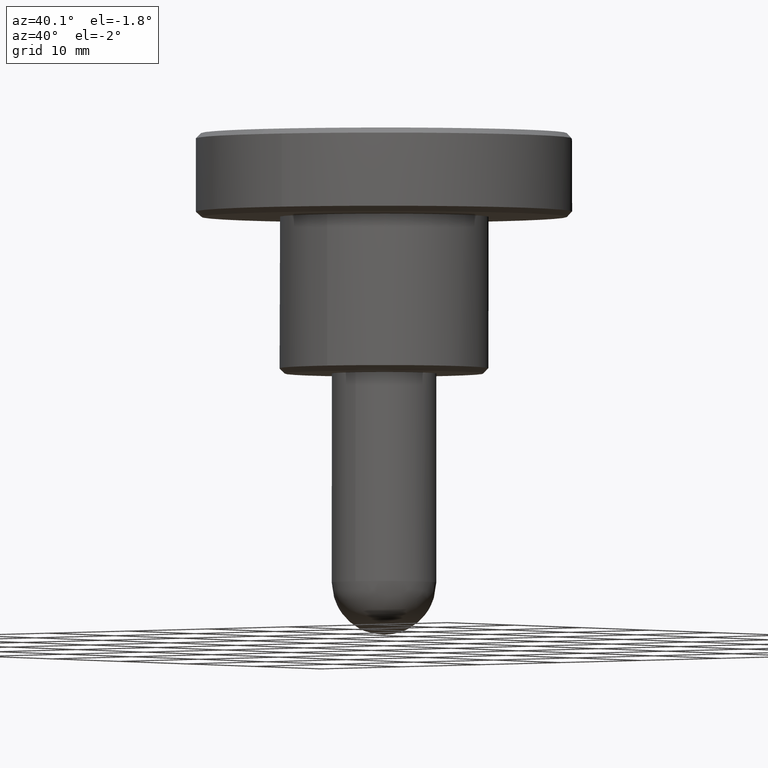
[diagram: clean part render]
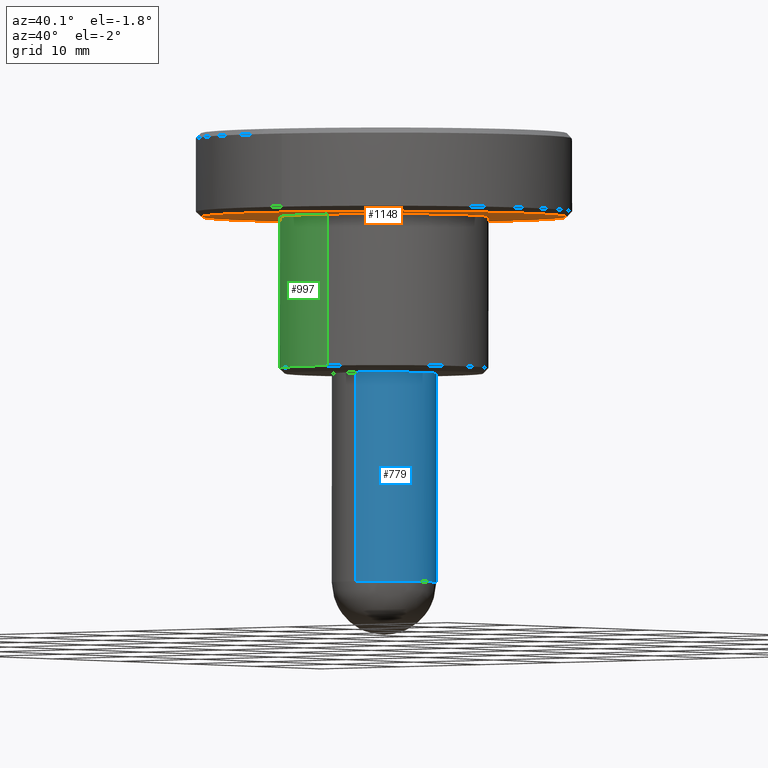
[diagram: same view with three faces highlighted in distinct colors, each labeled with its STEP entity id]
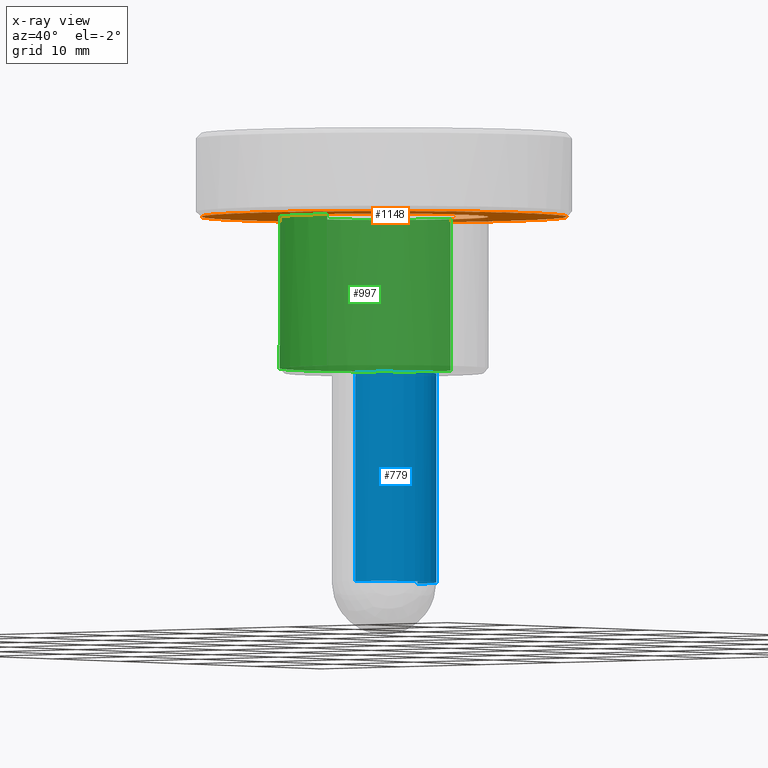
[diagram: x-ray of the same camera — body ghosted, the three highlighted faces saturated]
A machine part, auxiliary view with three faces highlighted in distinct colors.
The next image is the same camera in x-ray (body ghosted, the three faces saturated) — at least one of them is partly hidden behind the body in this view.
Their STEP definitions:

[orange] entity #1148 — the highlighted face is a freeform B-spline surface patch.
#286=CARTESIAN_POINT('',(17.500000000000000,0.0,15.0));
#287=VERTEX_POINT('',#286);
#288=CARTESIAN_POINT('',(14.330156972433670,-10.044730018543410,15.000000000000471));
#289=VERTEX_POINT('',#288);
#290=CARTESIAN_POINT('',(17.500000000000000,0.0,15.0));
#291=CARTESIAN_POINT('',(17.500000000000004,-5.522523042438500,14.999999999999996));
#292=CARTESIAN_POINT('',(14.330156972433665,-10.044730018543413,15.000000000000471));
#300=(BOUNDED_CURVE()B_SPLINE_CURVE(2,(#290,#291,#292),.UNSPECIFIED.,.F.,.U.)B_SPLINE_CURVE_WITH_KNOTS((3,3),(0.0,0.098673726203063),.UNSPECIFIED.)CURVE()GEOMETRIC_REPRESENTATION_ITEM()RATIONAL_B_SPLINE_CURVE((1.0,0.884396538880270,0.860049271925778))REPRESENTATION_ITEM(''));
#301=EDGE_CURVE('',#287,#289,#300,.T.);
#303=CARTESIAN_POINT('',(-17.500000000000000,0.0,15.0));
#304=VERTEX_POINT('',#303);
#305=CARTESIAN_POINT('',(-17.500000000000000,0.0,15.0));
#306=CARTESIAN_POINT('',(-17.499999999999996,17.499999999999996,14.999999999999995));
#307=CARTESIAN_POINT('',(0.0,17.500000000000000,15.0));
#308=CARTESIAN_POINT('',(17.499999999999996,17.499999999999996,14.999999999999995));
#309=CARTESIAN_POINT('',(17.500000000000000,0.0,15.0));
#317=(BOUNDED_CURVE()B_SPLINE_CURVE(2,(#305,#306,#307,#308,#309),.UNSPECIFIED.,.F.,.U.)B_SPLINE_CURVE_WITH_KNOTS((3,2,3),(0.500000000000000,0.750000000000000,1.0),.UNSPECIFIED.)CURVE()GEOMETRIC_REPRESENTATION_ITEM()RATIONAL_B_SPLINE_CURVE((1.0,0.707106781186548,1.0,0.707106781186548,1.0))REPRESENTATION_ITEM(''));
#318=EDGE_CURVE('',#304,#287,#317,.T.);
#320=CARTESIAN_POINT('',(0.152714371268623,-17.499333653628991,15.000000000006411));
#321=VERTEX_POINT('',#320);
#322=CARTESIAN_POINT('',(0.152714371268623,-17.499333653628984,15.000000000006407));
#323=CARTESIAN_POINT('',(0.076358639409304,-17.499999999999996,15.000000000000004));
#324=CARTESIAN_POINT('',(0.0,-17.500000000000000,15.0));
#325=CARTESIAN_POINT('',(-17.499999999999996,-17.499999999999996,14.999999999999995));
#326=CARTESIAN_POINT('',(-17.500000000000000,0.0,15.0));
#334=(BOUNDED_CURVE()B_SPLINE_CURVE(2,(#322,#323,#324,#325,#326),.UNSPECIFIED.,.F.,.U.)B_SPLINE_CURVE_WITH_KNOTS((3,2,3),(0.248460105664066,0.250000000000000,0.500000000000000),.UNSPECIFIED.)CURVE()GEOMETRIC_REPRESENTATION_ITEM()RATIONAL_B_SPLINE_CURVE((0.996414028098215,0.998195901565263,1.0,0.707106781186548,1.0))REPRESENTATION_ITEM(''));
#335=EDGE_CURVE('',#321,#304,#334,.T.);
#430=CARTESIAN_POINT('',(14.330156972433665,-10.044730018543413,15.000000000000471));
#431=CARTESIAN_POINT('',(9.159947341175357,-17.420728722285244,14.999999999999998));
#432=CARTESIAN_POINT('',(0.152714371268623,-17.499333653628991,15.000000000006404));
#440=(BOUNDED_CURVE()B_SPLINE_CURVE(2,(#430,#431,#432),.UNSPECIFIED.,.F.,.U.)B_SPLINE_CURVE_WITH_KNOTS((3,3),(0.098673726203063,0.248460105664066),.UNSPECIFIED.)CURVE()GEOMETRIC_REPRESENTATION_ITEM()RATIONAL_B_SPLINE_CURVE((0.860049271925778,0.823090203821073,0.996414028098215))REPRESENTATION_ITEM(''));
#441=EDGE_CURVE('',#289,#321,#440,.T.);
#891=CARTESIAN_POINT('',(-0.087258228863051,9.999619292825345,15.0));
#892=VERTEX_POINT('',#891);
#898=CARTESIAN_POINT('',(10.0,0.0,15.0));
#899=VERTEX_POINT('',#898);
#900=CARTESIAN_POINT('',(-0.087258228863051,9.999619292825345,14.999999999999998));
#901=CARTESIAN_POINT('',(-0.043629944943184,10.0,14.999999999999998));
#902=CARTESIAN_POINT('',(0.0,10.0,15.0));
#903=CARTESIAN_POINT('',(10.000000000000002,10.000000000000002,14.999999999999995));
#904=CARTESIAN_POINT('',(10.0,0.0,15.0));
#912=(BOUNDED_CURVE()B_SPLINE_CURVE(2,(#900,#901,#902,#903,#904),.UNSPECIFIED.,.F.,.U.)B_SPLINE_CURVE_WITH_KNOTS((3,2,3),(0.248460231191280,0.250000000000000,0.500000000000000),.UNSPECIFIED.)CURVE()GEOMETRIC_REPRESENTATION_ITEM()RATIONAL_B_SPLINE_CURVE((0.996414318603505,0.998196048629542,1.0,0.707106781186548,1.0))REPRESENTATION_ITEM(''));
#913=EDGE_CURVE('',#892,#899,#912,.T.);
#915=CARTESIAN_POINT('',(1.241272842970325,-9.922663036163831,15.0));
#916=VERTEX_POINT('',#915);
#917=CARTESIAN_POINT('',(10.0,0.0,15.0));
#918=CARTESIAN_POINT('',(10.0,-8.826992436511523,14.999999999999996));
#919=CARTESIAN_POINT('',(1.241272842970325,-9.922663036163831,15.0));
#927=(BOUNDED_CURVE()B_SPLINE_CURVE(2,(#917,#918,#919),.UNSPECIFIED.,.F.,.U.)B_SPLINE_CURVE_WITH_KNOTS((3,3),(0.500000000000000,0.728526193023929),.UNSPECIFIED.)CURVE()GEOMETRIC_REPRESENTATION_ITEM()RATIONAL_B_SPLINE_CURVE((1.0,0.732264910968149,0.954005667019270))REPRESENTATION_ITEM(''));
#928=EDGE_CURVE('',#899,#916,#927,.T.);
#963=CARTESIAN_POINT('',(-10.0,0.0,15.0));
#964=VERTEX_POINT('',#963);
#965=CARTESIAN_POINT('',(1.241272842970325,-9.922663036163831,15.0));
#966=CARTESIAN_POINT('',(0.623045644408739,-9.999999999999998,14.999999999999998));
#967=CARTESIAN_POINT('',(0.0,-10.0,15.0));
#968=CARTESIAN_POINT('',(-10.000000000000002,-10.000000000000002,14.999999999999995));
#969=CARTESIAN_POINT('',(-10.0,0.0,15.0));
#977=(BOUNDED_CURVE()B_SPLINE_CURVE(2,(#965,#966,#967,#968,#969),.UNSPECIFIED.,.F.,.U.)B_SPLINE_CURVE_WITH_KNOTS((3,2,3),(0.728526193023929,0.750000000000000,1.0),.UNSPECIFIED.)CURVE()GEOMETRIC_REPRESENTATION_ITEM()RATIONAL_B_SPLINE_CURVE((0.954005667019270,0.974841870218399,1.0,0.707106781186548,1.0))REPRESENTATION_ITEM(''));
#978=EDGE_CURVE('',#916,#964,#977,.T.);
#980=CARTESIAN_POINT('',(-10.0,0.0,15.0));
#981=CARTESIAN_POINT('',(-9.999999999999998,9.913119170693559,14.999999999999996));
#982=CARTESIAN_POINT('',(-0.087258228863051,9.999619292825345,14.999999999999998));
#990=(BOUNDED_CURVE()B_SPLINE_CURVE(2,(#980,#981,#982),.UNSPECIFIED.,.F.,.U.)B_SPLINE_CURVE_WITH_KNOTS((3,3),(0.0,0.248460231191280),.UNSPECIFIED.)CURVE()GEOMETRIC_REPRESENTATION_ITEM()RATIONAL_B_SPLINE_CURVE((1.0,0.708910732557006,0.996414318603505))REPRESENTATION_ITEM(''));
#991=EDGE_CURVE('',#964,#892,#990,.T.);
#1131=CARTESIAN_POINT('',(-19.248249932163208,-19.247551095767321,15.0));
#1132=CARTESIAN_POINT('',(19.248250870936360,-19.247551095767321,15.0));
#1133=CARTESIAN_POINT('',(-19.248249932163208,19.248217624707522,15.0));
#1134=CARTESIAN_POINT('',(19.248250870936360,19.248217624707522,15.0));
#1135=B_SPLINE_SURFACE_WITH_KNOTS('',1,1,((#1131,#1133),(#1132,#1134)),.UNSPECIFIED.,.F.,.F.,.U.,(2,2),(2,2),(0.0,38.496500803099579),(0.0,38.495768720474842),.UNSPECIFIED.);
#1136=ORIENTED_EDGE('',*,*,#301,.T.);
#1137=ORIENTED_EDGE('',*,*,#441,.T.);
#1138=ORIENTED_EDGE('',*,*,#335,.T.);
#1139=ORIENTED_EDGE('',*,*,#318,.T.);
#1140=EDGE_LOOP('',(#1136,#1137,#1138,#1139));
#1141=FACE_OUTER_BOUND('',#1140,.T.);
#1142=ORIENTED_EDGE('',*,*,#991,.F.);
#1143=ORIENTED_EDGE('',*,*,#978,.F.);
#1144=ORIENTED_EDGE('',*,*,#928,.F.);
#1145=ORIENTED_EDGE('',*,*,#913,.F.);
#1146=EDGE_LOOP('',(#1142,#1143,#1144,#1145));
#1147=FACE_BOUND('',#1146,.T.);
#1148=ADVANCED_FACE('',(#1141,#1147),#1135,.F.);

[blue] entity #779 — the highlighted face is a freeform B-spline surface patch.
#677=CARTESIAN_POINT('',(0.550585073724925,-4.970094623911720,-20.500000000000000));
#678=CARTESIAN_POINT('',(0.585526285719118,-4.965723636796916,-20.500000000000007));
#679=CARTESIAN_POINT('',(5.038664152512223,-4.408656290666105,-20.500000000000004));
#680=CARTESIAN_POINT('',(4.999809615320855,0.043632677491869,-20.500000000000000));
#681=CARTESIAN_POINT('',(4.956176937828985,5.043442292812725,-20.500000000000007));
#682=CARTESIAN_POINT('',(-0.077477366968815,4.999514257190369,-20.500000000000004));
#683=CARTESIAN_POINT('',(-0.111132793367470,4.999220550733747,-20.500000000000007));
#684=CARTESIAN_POINT('',(0.550585073724925,-4.970094623911720,0.512500000000003));
#685=CARTESIAN_POINT('',(0.585526285719118,-4.965723636796916,0.512500000000003));
#686=CARTESIAN_POINT('',(5.038664152512223,-4.408656290666105,0.512500000000003));
#687=CARTESIAN_POINT('',(4.999809615320855,0.043632677491869,0.512500000000003));
#688=CARTESIAN_POINT('',(4.956176937828985,5.043442292812725,0.512500000000003));
#689=CARTESIAN_POINT('',(-0.077477366968815,4.999514257190369,0.512500000000003));
#690=CARTESIAN_POINT('',(-0.111132793367470,4.999220550733747,0.512500000000003));
#698=(BOUNDED_SURFACE()B_SPLINE_SURFACE(2,1,((#677,#684),(#678,#685),(#679,#686),(#680,#687),(#681,#688),(#682,#689),(#683,#690)),.UNSPECIFIED.,.F.,.F.,.U.)B_SPLINE_SURFACE_WITH_KNOTS((3,1,2,1,3),(2,2),(0.0,0.079538800556767,7.701068348221712,15.985339595683611,16.064868646661449),(0.0,21.012500000000010),.UNSPECIFIED.)GEOMETRIC_REPRESENTATION_ITEM()RATIONAL_B_SPLINE_SURFACE(((0.961610481910915,0.961610481910915),(0.959248300050787,0.959248300050787),(0.730538238691624,0.730538238691624),(1.0,1.0),(0.707106781186548,0.707106781186548),(1.002811776562388,1.002811776562388),(1.005623553124776,1.005623553124776)))REPRESENTATION_ITEM('')SURFACE());
#699=CARTESIAN_POINT('',(0.620639601353718,-4.961331120297387,-20.0));
#700=VERTEX_POINT('',#699);
#701=CARTESIAN_POINT('',(5.0,0.0,-20.0));
#702=VERTEX_POINT('',#701);
#703=CARTESIAN_POINT('',(0.620639601353718,-4.961331120297387,-20.000000000000007));
#704=CARTESIAN_POINT('',(5.000000000000001,-4.413493734179329,-20.000000000000004));
#705=CARTESIAN_POINT('',(5.0,0.0,-20.0));
#713=(BOUNDED_CURVE()B_SPLINE_CURVE(2,(#703,#704,#705),.UNSPECIFIED.,.F.,.U.)B_SPLINE_CURVE_WITH_KNOTS((3,3),(0.771473901162097,1.0),.UNSPECIFIED.)CURVE()GEOMETRIC_REPRESENTATION_ITEM()RATIONAL_B_SPLINE_CURVE((0.954005484240476,0.732265021313941,1.0))REPRESENTATION_ITEM(''));
#714=EDGE_CURVE('',#700,#702,#713,.T.);
#715=ORIENTED_EDGE('',*,*,#714,.T.);
#716=CARTESIAN_POINT('',(-0.043632677518870,4.999809615320620,-20.0));
#717=VERTEX_POINT('',#716);
#718=CARTESIAN_POINT('',(5.0,0.0,-20.0));
#719=CARTESIAN_POINT('',(5.000000000000001,5.000000000000001,-19.999999999999996));
#720=CARTESIAN_POINT('',(0.0,5.0,-20.0));
#721=CARTESIAN_POINT('',(-0.021816754130510,5.000000000000001,-19.999999999999996));
#722=CARTESIAN_POINT('',(-0.043632677518870,4.999809615320620,-20.000000000000004));
#730=(BOUNDED_CURVE()B_SPLINE_CURVE(2,(#718,#719,#720,#721,#722),.UNSPECIFIED.,.F.,.U.)B_SPLINE_CURVE_WITH_KNOTS((3,2,3),(0.0,0.250000000000000,0.251539894336890),.UNSPECIFIED.)CURVE()GEOMETRIC_REPRESENTATION_ITEM()RATIONAL_B_SPLINE_CURVE((1.0,0.707106781186548,1.0,0.998195901564143,0.996414028096003))REPRESENTATION_ITEM(''));
#731=EDGE_CURVE('',#702,#717,#730,.T.);
#732=ORIENTED_EDGE('',*,*,#731,.T.);
#733=CARTESIAN_POINT('',(-0.043632677514503,4.999809615320658,-5.551115E-017));
#734=VERTEX_POINT('',#733);
#735=CARTESIAN_POINT('',(-0.043632677518870,4.999809615320620,-20.0));
#736=CARTESIAN_POINT('',(-0.043632677514503,4.999809615320658,-5.551115E-017));
#737=QUASI_UNIFORM_CURVE('',1,(#735,#736),.UNSPECIFIED.,.F.,.U.);
#738=EDGE_CURVE('',#717,#734,#737,.T.);
#739=ORIENTED_EDGE('',*,*,#738,.T.);
#740=CARTESIAN_POINT('',(5.0,0.0,0.0));
#741=VERTEX_POINT('',#740);
#742=CARTESIAN_POINT('',(-0.043632677514503,4.999809615320658,-5.551115E-017));
#743=CARTESIAN_POINT('',(-0.021816754126143,5.000000000000001,0.0));
#744=CARTESIAN_POINT('',(0.0,5.0,0.0));
#745=CARTESIAN_POINT('',(5.000000000000001,5.000000000000001,0.0));
#746=CARTESIAN_POINT('',(5.0,0.0,0.0));
#754=(BOUNDED_CURVE()B_SPLINE_CURVE(2,(#742,#743,#744,#745,#746),.UNSPECIFIED.,.F.,.U.)B_SPLINE_CURVE_WITH_KNOTS((3,2,3),(0.248460105663418,0.250000000000000,0.500000000000000),.UNSPECIFIED.)CURVE()GEOMETRIC_REPRESENTATION_ITEM()RATIONAL_B_SPLINE_CURVE((0.996414028096715,0.998195901564504,1.0,0.707106781186548,1.0))REPRESENTATION_ITEM(''));
#755=EDGE_CURVE('',#734,#741,#754,.T.);
#756=ORIENTED_EDGE('',*,*,#755,.T.);
#757=CARTESIAN_POINT('',(0.620631380892056,-4.961332148624638,1.102233E-015));
#758=VERTEX_POINT('',#757);
#759=CARTESIAN_POINT('',(5.0,0.0,0.0));
#760=CARTESIAN_POINT('',(5.0,-4.413500737210683,0.0));
#761=CARTESIAN_POINT('',(0.620631380892056,-4.961332148624638,1.102233E-015));
#769=(BOUNDED_CURVE()B_SPLINE_CURVE(2,(#759,#760,#761),.UNSPECIFIED.,.F.,.U.)B_SPLINE_CURVE_WITH_KNOTS((3,3),(0.500000000000000,0.728526364364156),.UNSPECIFIED.)CURVE()GEOMETRIC_REPRESENTATION_ITEM()RATIONAL_B_SPLINE_CURVE((1.0,0.732264710230585,0.954005999525077))REPRESENTATION_ITEM(''));
#770=EDGE_CURVE('',#741,#758,#769,.T.);
#771=ORIENTED_EDGE('',*,*,#770,.T.);
#772=CARTESIAN_POINT('',(0.620639601353718,-4.961331120297387,-20.0));
#773=CARTESIAN_POINT('',(0.620631380892056,-4.961332148624638,1.102233E-015));
#774=QUASI_UNIFORM_CURVE('',1,(#772,#773),.UNSPECIFIED.,.F.,.U.);
#775=EDGE_CURVE('',#700,#758,#774,.T.);
#776=ORIENTED_EDGE('',*,*,#775,.F.);
#777=EDGE_LOOP('',(#715,#732,#739,#756,#771,#776));
#778=FACE_OUTER_BOUND('',#777,.T.);
#779=ADVANCED_FACE('',(#778),#698,.T.);

[green] entity #997 — the highlighted face is a freeform B-spline surface patch.
#498=CARTESIAN_POINT('',(-4.042154319914989,-9.146638095718963,0.500000000003185));
#499=VERTEX_POINT('',#498);
#500=CARTESIAN_POINT('',(1.241265789382446,-9.922663918520220,0.499999999999937));
#501=VERTEX_POINT('',#500);
#502=CARTESIAN_POINT('',(-4.042154319914989,-9.146638095718963,0.500000000003185));
#503=CARTESIAN_POINT('',(-2.111156172558719,-10.0,0.499999999999945));
#504=CARTESIAN_POINT('',(0.0,-10.0,0.499999999999945));
#505=CARTESIAN_POINT('',(0.623042076330564,-10.000000000000002,0.499999999999945));
#506=CARTESIAN_POINT('',(1.241265789382446,-9.922663918520220,0.499999999999937));
#514=(BOUNDED_CURVE()B_SPLINE_CURVE(2,(#502,#503,#504,#505,#506),.UNSPECIFIED.,.F.,.U.)B_SPLINE_CURVE_WITH_KNOTS((3,2,3),(0.181361578458741,0.250000000000000,0.271473687093023),.UNSPECIFIED.)CURVE()GEOMETRIC_REPRESENTATION_ITEM()RATIONAL_B_SPLINE_CURVE((0.883326595750625,0.919585087122024,1.0,0.974842010670127,0.954005899666328))REPRESENTATION_ITEM(''));
#515=EDGE_CURVE('',#499,#501,#514,.T.);
#558=CARTESIAN_POINT('',(-0.087262114269280,9.999619258919854,0.499999999998912));
#559=VERTEX_POINT('',#558);
#616=CARTESIAN_POINT('',(-10.0,0.0,0.499999999999945));
#617=VERTEX_POINT('',#616);
#618=CARTESIAN_POINT('',(-10.0,0.0,0.499999999999945));
#619=CARTESIAN_POINT('',(-10.0,-6.513700025861865,0.499999999999945));
#620=CARTESIAN_POINT('',(-4.042154319914989,-9.146638095718963,0.500000000003185));
#628=(BOUNDED_CURVE()B_SPLINE_CURVE(2,(#618,#619,#620),.UNSPECIFIED.,.F.,.U.)B_SPLINE_CURVE_WITH_KNOTS((3,3),(0.0,0.181361578458741),.UNSPECIFIED.)CURVE()GEOMETRIC_REPRESENTATION_ITEM()RATIONAL_B_SPLINE_CURVE((1.0,0.787521694064524,0.883326595750625))REPRESENTATION_ITEM(''));
#629=EDGE_CURVE('',#617,#499,#628,.T.);
#631=CARTESIAN_POINT('',(-0.087262114269280,9.999619258919854,0.499999999998912));
#632=CARTESIAN_POINT('',(-10.0,9.913115318751508,0.499999999999945));
#633=CARTESIAN_POINT('',(-10.0,0.0,0.499999999999945));
#641=(BOUNDED_CURVE()B_SPLINE_CURVE(2,(#631,#632,#633),.UNSPECIFIED.,.F.,.U.)B_SPLINE_CURVE_WITH_KNOTS((3,3),(0.751539837249965,1.0),.UNSPECIFIED.)CURVE()GEOMETRIC_REPRESENTATION_ITEM()RATIONAL_B_SPLINE_CURVE((0.996414160211171,0.708910812740912,1.0))REPRESENTATION_ITEM(''));
#642=EDGE_CURVE('',#559,#617,#641,.T.);
#891=CARTESIAN_POINT('',(-0.087258228863051,9.999619292825345,15.0));
#892=VERTEX_POINT('',#891);
#893=CARTESIAN_POINT('',(-0.087262114269280,9.999619258919854,0.499999999998912));
#894=CARTESIAN_POINT('',(-0.087258228863051,9.999619292825345,15.0));
#895=QUASI_UNIFORM_CURVE('',1,(#893,#894),.UNSPECIFIED.,.F.,.U.);
#896=EDGE_CURVE('',#559,#892,#895,.T.);
#915=CARTESIAN_POINT('',(1.241272842970325,-9.922663036163831,15.0));
#916=VERTEX_POINT('',#915);
#930=CARTESIAN_POINT('',(1.241265789382446,-9.922663918520220,0.499999999999937));
#931=CARTESIAN_POINT('',(1.241272842970325,-9.922663036163831,15.0));
#932=QUASI_UNIFORM_CURVE('',1,(#930,#931),.UNSPECIFIED.,.F.,.U.);
#933=EDGE_CURVE('',#501,#916,#932,.T.);
#938=CARTESIAN_POINT('',(-0.087265354983739,9.999619230641709,0.137499999999943));
#939=CARTESIAN_POINT('',(-10.086884585625448,9.912353875657971,0.137499999999943));
#940=CARTESIAN_POINT('',(-9.999619230641709,-0.087265354983739,0.137499999999943));
#941=CARTESIAN_POINT('',(-9.912353875657971,-10.086884585625448,0.137499999999943));
#942=CARTESIAN_POINT('',(0.087265354983739,-9.999619230641709,0.137499999999943));
#943=CARTESIAN_POINT('',(0.666501589581736,-9.994564312602755,0.137499999999943));
#944=CARTESIAN_POINT('',(1.241280020798293,-9.922662138255385,0.137499999999943));
#945=CARTESIAN_POINT('',(-0.087265354983739,9.999619230641709,15.371562500000000));
#946=CARTESIAN_POINT('',(-10.086884585625448,9.912353875657971,15.371562500000001));
#947=CARTESIAN_POINT('',(-9.999619230641709,-0.087265354983739,15.371562500000000));
#948=CARTESIAN_POINT('',(-9.912353875657971,-10.086884585625448,15.371562500000001));
#949=CARTESIAN_POINT('',(0.087265354983739,-9.999619230641709,15.371562500000000));
#950=CARTESIAN_POINT('',(0.666501589581736,-9.994564312602755,15.371562500000001));
#951=CARTESIAN_POINT('',(1.241280020798293,-9.922662138255385,15.371562500000005));
#959=(BOUNDED_SURFACE()B_SPLINE_SURFACE(2,1,((#938,#945),(#939,#946),(#940,#947),(#941,#948),(#942,#949),(#943,#950),(#944,#951)),.UNSPECIFIED.,.F.,.F.,.U.)B_SPLINE_SURFACE_WITH_KNOTS((3,2,2,3),(2,2),(0.0,16.568542494923800,33.137084989847587,34.462568389441500),(0.0,15.234062500000061),.UNSPECIFIED.)GEOMETRIC_REPRESENTATION_ITEM()RATIONAL_B_SPLINE_SURFACE(((1.0,1.0),(0.707106781186548,0.707106781186548),(1.0,1.0),(0.707106781186548,0.707106781186548),(1.0,1.0),(0.976568542494924,0.976568542494924),(0.956886118190660,0.956886118190660)))REPRESENTATION_ITEM('')SURFACE());
#960=ORIENTED_EDGE('',*,*,#629,.T.);
#961=ORIENTED_EDGE('',*,*,#515,.T.);
#962=ORIENTED_EDGE('',*,*,#933,.T.);
#963=CARTESIAN_POINT('',(-10.0,0.0,15.0));
#964=VERTEX_POINT('',#963);
#965=CARTESIAN_POINT('',(1.241272842970325,-9.922663036163831,15.0));
#966=CARTESIAN_POINT('',(0.623045644408739,-9.999999999999998,14.999999999999998));
#967=CARTESIAN_POINT('',(0.0,-10.0,15.0));
#968=CARTESIAN_POINT('',(-10.000000000000002,-10.000000000000002,14.999999999999995));
#969=CARTESIAN_POINT('',(-10.0,0.0,15.0));
#977=(BOUNDED_CURVE()B_SPLINE_CURVE(2,(#965,#966,#967,#968,#969),.UNSPECIFIED.,.F.,.U.)B_SPLINE_CURVE_WITH_KNOTS((3,2,3),(0.728526193023929,0.750000000000000,1.0),.UNSPECIFIED.)CURVE()GEOMETRIC_REPRESENTATION_ITEM()RATIONAL_B_SPLINE_CURVE((0.954005667019270,0.974841870218399,1.0,0.707106781186548,1.0))REPRESENTATION_ITEM(''));
#978=EDGE_CURVE('',#916,#964,#977,.T.);
#979=ORIENTED_EDGE('',*,*,#978,.T.);
#980=CARTESIAN_POINT('',(-10.0,0.0,15.0));
#981=CARTESIAN_POINT('',(-9.999999999999998,9.913119170693559,14.999999999999996));
#982=CARTESIAN_POINT('',(-0.087258228863051,9.999619292825345,14.999999999999998));
#990=(BOUNDED_CURVE()B_SPLINE_CURVE(2,(#980,#981,#982),.UNSPECIFIED.,.F.,.U.)B_SPLINE_CURVE_WITH_KNOTS((3,3),(0.0,0.248460231191280),.UNSPECIFIED.)CURVE()GEOMETRIC_REPRESENTATION_ITEM()RATIONAL_B_SPLINE_CURVE((1.0,0.708910732557006,0.996414318603505))REPRESENTATION_ITEM(''));
#991=EDGE_CURVE('',#964,#892,#990,.T.);
#992=ORIENTED_EDGE('',*,*,#991,.T.);
#993=ORIENTED_EDGE('',*,*,#896,.F.);
#994=ORIENTED_EDGE('',*,*,#642,.T.);
#995=EDGE_LOOP('',(#960,#961,#962,#979,#992,#993,#994));
#996=FACE_OUTER_BOUND('',#995,.T.);
#997=ADVANCED_FACE('',(#996),#959,.T.);